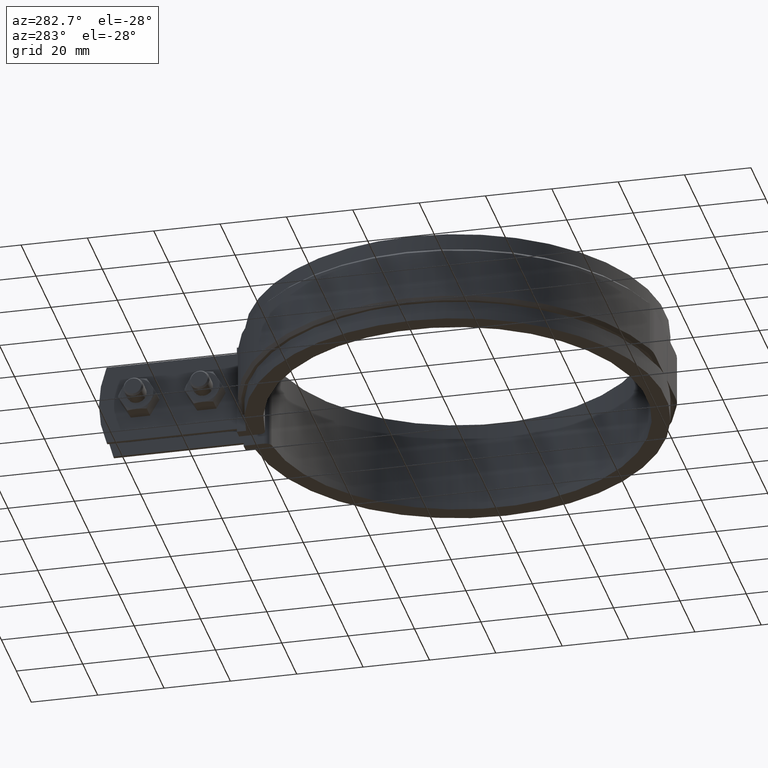
[diagram: clean part render]
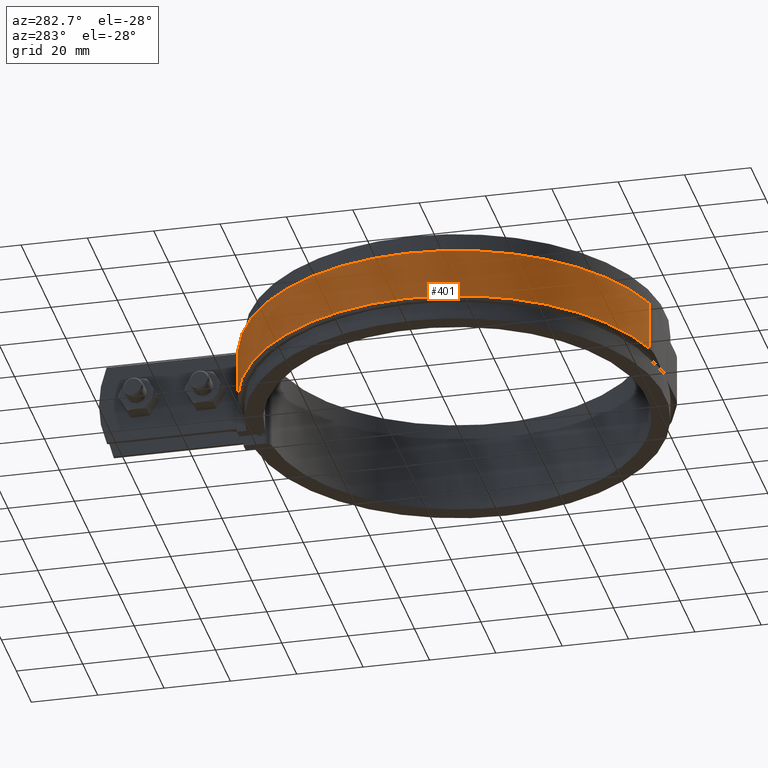
[diagram: same view with one face highlighted and labeled with its STEP entity id]
A machine part, auxiliary view. The second image highlights one B-rep face of the part: STEP entity #401.
In plain terms, the highlighted cylindrical surface (partial cylindrical patch) has radius 64.65 mm, axis along (0, 0, -1).
Its self-contained STEP definition (entity closure, byte-faithful):
#401 = ADVANCED_FACE( '', ( #694 ), #695, .T. );
#694 = FACE_OUTER_BOUND( '', #1546, .T. );
#695 = CYLINDRICAL_SURFACE( '', #1547, 64.6500000000000 );
#1546 = EDGE_LOOP( '', ( #3090, #3091, #3092, #3093 ) );
#1547 = AXIS2_PLACEMENT_3D( '', #3094, #3095, #3096 );
#3090 = ORIENTED_EDGE( '', *, *, #4085, .T. );
#3091 = ORIENTED_EDGE( '', *, *, #4123, .T. );
#3092 = ORIENTED_EDGE( '', *, *, #4124, .T. );
#3093 = ORIENTED_EDGE( '', *, *, #4125, .T. );
#3094 = CARTESIAN_POINT( '', ( 0.000000000000000, 1.38777878078145E-014, -8.50000000000000 ) );
#3095 = DIRECTION( '', ( 0.000000000000000, 0.000000000000000, -1.00000000000000 ) );
#3096 = DIRECTION( '', ( -0.0773395204949730, 0.997004813714361, 0.000000000000000 ) );
#4085 = EDGE_CURVE( '', #4748, #4746, #4749, .F. );
#4123 = EDGE_CURVE( '', #4746, #4808, #4809, .T. );
#4124 = EDGE_CURVE( '', #4808, #4810, #4811, .T. );
#4125 = EDGE_CURVE( '', #4810, #4748, #4812, .F. );
#4746 = VERTEX_POINT( '', #7367 );
#4748 = VERTEX_POINT( '', #7372 );
#4749 = LINE( '', #7373, #7374 );
#4808 = VERTEX_POINT( '', #7481 );
#4809 = CIRCLE( '', #7482, 64.6500000000000 );
#4810 = VERTEX_POINT( '', #7483 );
#4811 = LINE( '', #7484, #7485 );
#4812 = CIRCLE( '', #7486, 64.6500000000000 );
#7367 = CARTESIAN_POINT( '', ( -6.00000000000000, 64.3709756023629, -7.50000000000000 ) );
#7372 = CARTESIAN_POINT( '', ( -6.00000000000000, 64.3709756023629, 7.50000000000000 ) );
#7373 = CARTESIAN_POINT( '', ( -6.00000000000000, 64.3709756023629, -8.50000000000000 ) );
#7374 = VECTOR( '', #8333, 1000.00000000000 );
#7481 = CARTESIAN_POINT( '', ( -18.1643848332456, -62.0457703927492, -7.50000000000000 ) );
#7482 = AXIS2_PLACEMENT_3D( '', #8374, #8375, #8376 );
#7483 = CARTESIAN_POINT( '', ( -18.1643848332456, -62.0457703927492, 7.50000000000000 ) );
#7484 = CARTESIAN_POINT( '', ( -18.1643848332456, -62.0457703927492, -8.50000000000000 ) );
#7485 = VECTOR( '', #8377, 1000.00000000000 );
#7486 = AXIS2_PLACEMENT_3D( '', #8378, #8379, #8380 );
#8333 = DIRECTION( '', ( 0.000000000000000, 0.000000000000000, 1.00000000000000 ) );
#8374 = CARTESIAN_POINT( '', ( 0.000000000000000, 1.38777878078145E-014, -7.50000000000000 ) );
#8375 = DIRECTION( '', ( 0.000000000000000, 0.000000000000000, 1.00000000000000 ) );
#8376 = DIRECTION( '', ( 1.00000000000000, 0.000000000000000, 0.000000000000000 ) );
#8377 = DIRECTION( '', ( 0.000000000000000, 0.000000000000000, 1.00000000000000 ) );
#8378 = CARTESIAN_POINT( '', ( 0.000000000000000, 1.38777878078145E-014, 7.50000000000000 ) );
#8379 = DIRECTION( '', ( 0.000000000000000, 0.000000000000000, 1.00000000000000 ) );
#8380 = DIRECTION( '', ( 1.00000000000000, 0.000000000000000, 0.000000000000000 ) );